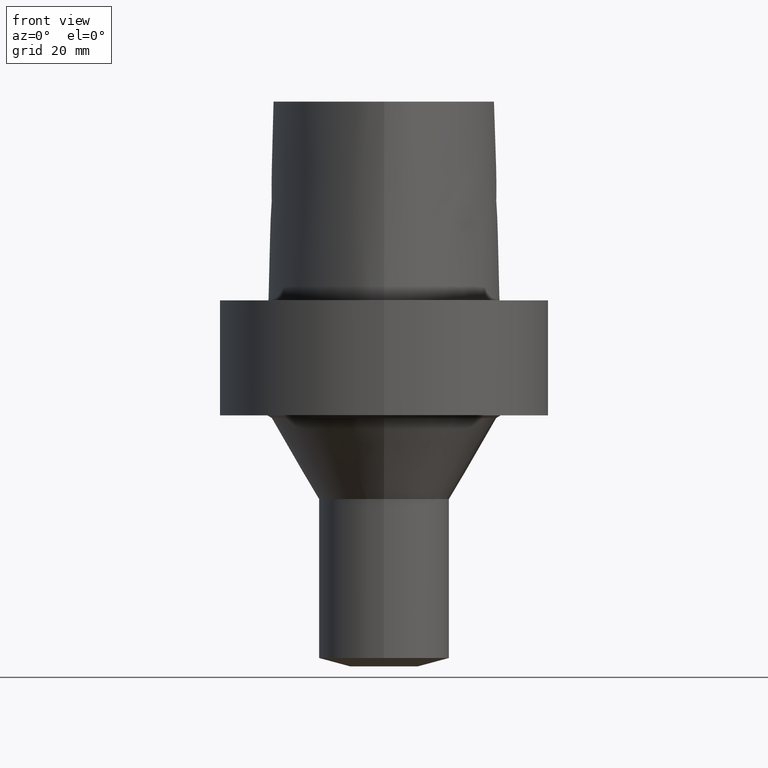
[diagram: clean part render]
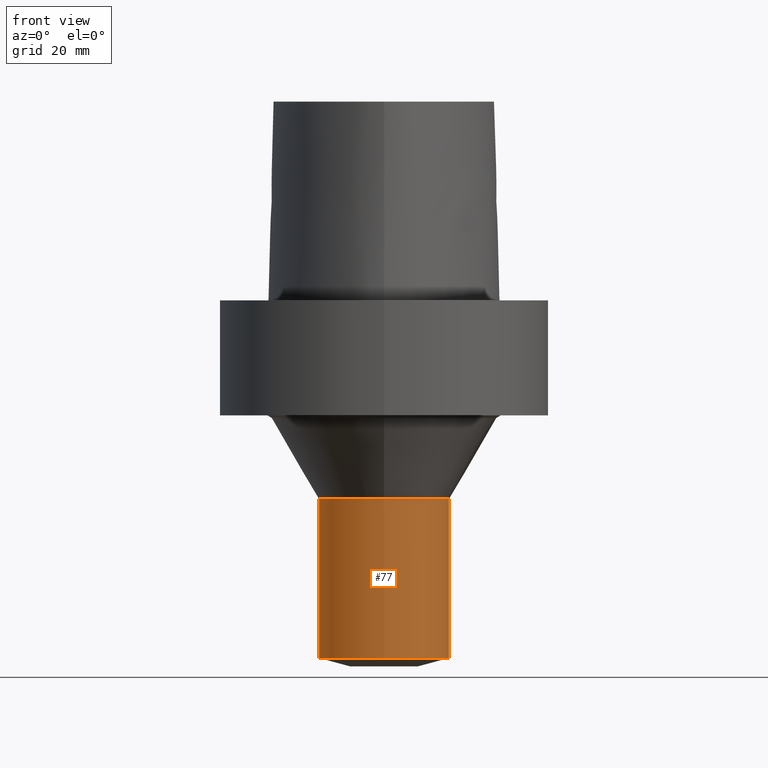
[diagram: same view with one face highlighted and labeled with its STEP entity id]
A machine part, front view. The second image highlights one B-rep face of the part: STEP entity #77.
In plain terms, the highlighted cylindrical surface (bore or boss wall) has radius 12.5 mm, axis along (-0, -0, 1).
Its self-contained STEP definition (entity closure, byte-faithful):
#77=ADVANCED_FACE('',(#94,#95),#96,.T.);
#94=FACE_BOUND('',#125,.T.);
#95=FACE_BOUND('',#126,.T.);
#96=CYLINDRICAL_SURFACE('',#127,12.5);
#125=EDGE_LOOP('',(#300));
#126=EDGE_LOOP('',(#301));
#127=AXIS2_PLACEMENT_3D('',#302,#303,#304);
#300=ORIENTED_EDGE('',*,*,#354,.T.);
#301=ORIENTED_EDGE('',*,*,#352,.F.);
#302=CARTESIAN_POINT('',(3.257325E-015,6.51465E-015,-53.1961524233327));
#303=DIRECTION('',(-0.0,-0.0,1.0));
#304=DIRECTION('',(0.0,1.0,0.0));
#352=EDGE_CURVE('',#371,#371,#372,.T.);
#354=EDGE_CURVE('',#375,#375,#376,.T.);
#371=VERTEX_POINT('',#458);
#372=CIRCLE('',#459,12.5);
#375=VERTEX_POINT('',#462);
#376=CIRCLE('',#463,12.5);
#458=CARTESIAN_POINT('',(1.726567E-015,-12.5,-68.3923048424148));
#459=AXIS2_PLACEMENT_3D('',#516,#517,#518);
#462=CARTESIAN_POINT('',(3.215203E-016,-12.5,-38.0000000042506));
#463=AXIS2_PLACEMENT_3D('',#522,#523,#524);
#516=CARTESIAN_POINT('',(4.187821E-015,8.375642E-015,-68.3923048424148));
#517=DIRECTION('',(0.0,0.0,-1.0));
#518=DIRECTION('',(0.0,1.0,0.0));
#522=CARTESIAN_POINT('',(2.326829E-015,4.653658E-015,-38.0000000042506));
#523=DIRECTION('',(0.0,0.0,-1.0));
#524=DIRECTION('',(0.0,1.0,0.0));